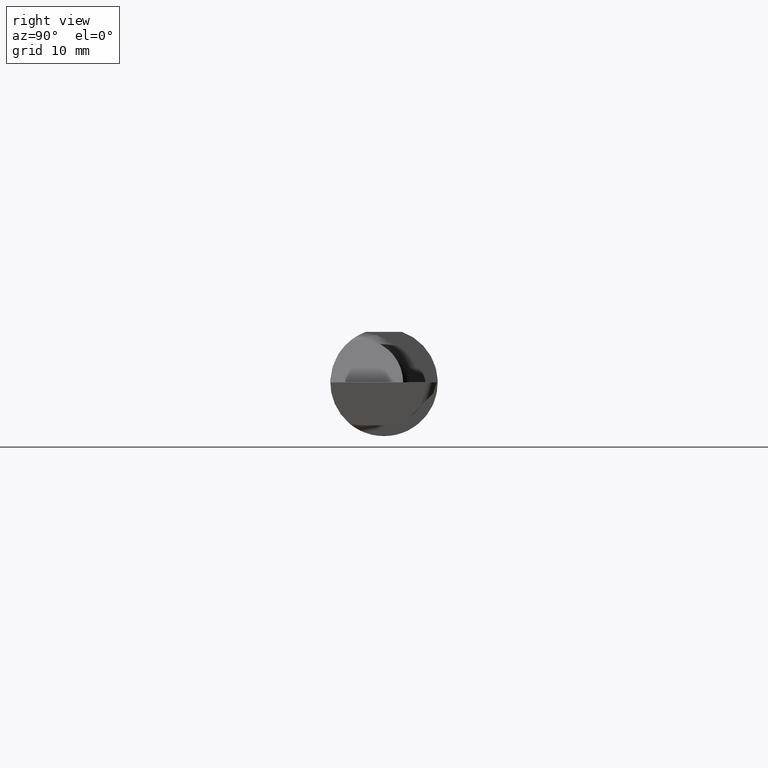
[diagram: clean part render]
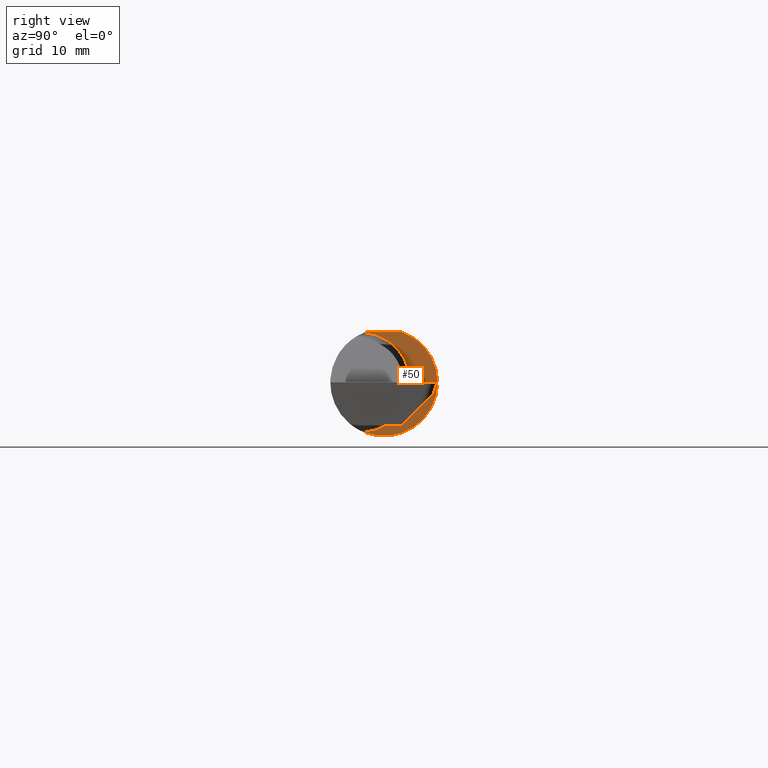
[diagram: same view with one face highlighted and labeled with its STEP entity id]
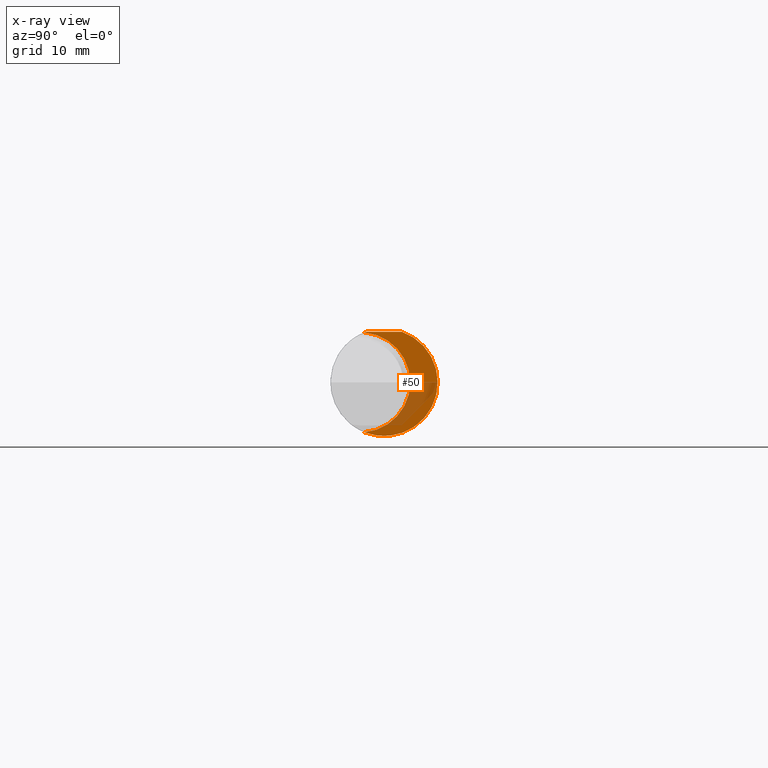
[diagram: x-ray of the same camera — body ghosted, the highlighted face saturated]
A machine part, right view. The second image highlights one B-rep face of the part: STEP entity #50.
The next image is the same camera in x-ray: the body ghosted, the highlighted face saturated — about 28% of this face is hidden behind the body in this view.
In plain terms, the highlighted planar face has unit normal (1, 0, 0).
Its self-contained STEP definition (entity closure, byte-faithful):
#1 = CARTESIAN_POINT ( 'NONE',  ( 1.450000000000000178, -0.06851976604679066440, 0.1743704796142198643 ) ) ;
#19 = EDGE_CURVE ( 'NONE', #343, #255, #606, .T. ) ;
#20 = DIRECTION ( 'NONE',  ( 0.000000000000000000, 1.000000000000000000, 0.000000000000000000 ) ) ;
#40 = DIRECTION ( 'NONE',  ( 0.000000000000000000, 1.000000000000000000, 0.000000000000000000 ) ) ;
#42 = ORIENTED_EDGE ( 'NONE', *, *, #19, .F. ) ;
#50 = ADVANCED_FACE ( 'NONE', ( #224 ), #218, .T. ) ;
#79 = EDGE_CURVE ( 'NONE', #343, #387, #85, .T. ) ;
#85 = CIRCLE ( 'NONE', #166, 0.1873499999999999888 ) ;
#113 = DIRECTION ( 'NONE',  ( -5.153652266948881677E-17, 1.000000000000000000, 0.000000000000000000 ) ) ;
#166 = AXIS2_PLACEMENT_3D ( 'NONE', #576, #686, #20 ) ;
#167 = ORIENTED_EDGE ( 'NONE', *, *, #169, .T. ) ;
#169 = EDGE_CURVE ( 'NONE', #387, #352, #681, .T. ) ;
#186 = DIRECTION ( 'NONE',  ( -1.000000000000000000, -5.153652266948881677E-17, -0.000000000000000000 ) ) ;
#207 = CARTESIAN_POINT ( 'NONE',  ( 1.450000000000000178, -0.06851976604679066440, -0.1743704796142198643 ) ) ;
#213 = CARTESIAN_POINT ( 'NONE',  ( 1.450000000000000178, 0.000000000000000000, 0.000000000000000000 ) ) ;
#218 = PLANE ( 'NONE',  #449 ) ;
#224 = FACE_OUTER_BOUND ( 'NONE', #702, .T. ) ;
#230 = ORIENTED_EDGE ( 'NONE', *, *, #340, .T. ) ;
#255 = VERTEX_POINT ( 'NONE', #362 ) ;
#260 = AXIS2_PLACEMENT_3D ( 'NONE', #213, #305, #40 ) ;
#266 = CARTESIAN_POINT ( 'NONE',  ( 1.450000000000000178, 0.1873499999999998500, 0.000000000000000000 ) ) ;
#298 = CIRCLE ( 'NONE', #260, 0.1873499999999999888 ) ;
#305 = DIRECTION ( 'NONE',  ( 1.000000000000000000, 5.153652266948881677E-17, 0.000000000000000000 ) ) ;
#328 = CARTESIAN_POINT ( 'NONE',  ( 1.450000000000000178, 0.1873499999999997667, 0.1763499999999999235 ) ) ;
#340 = EDGE_CURVE ( 'NONE', #352, #255, #298, .T. ) ;
#343 = VERTEX_POINT ( 'NONE', #694 ) ;
#352 = VERTEX_POINT ( 'NONE', #207 ) ;
#362 = CARTESIAN_POINT ( 'NONE',  ( 1.450000000000000178, 0.06325108694718235836, 0.1763499999999999235 ) ) ;
#387 = VERTEX_POINT ( 'NONE', #1 ) ;
#428 = AXIS2_PLACEMENT_3D ( 'NONE', #617, #186, #460 ) ;
#438 = DIRECTION ( 'NONE',  ( -5.153652266948881677E-17, 1.000000000000000000, 0.000000000000000000 ) ) ;
#441 = DIRECTION ( 'NONE',  ( 1.000000000000000000, 5.153652266948881677E-17, 0.000000000000000000 ) ) ;
#449 = AXIS2_PLACEMENT_3D ( 'NONE', #266, #441, #438 ) ;
#458 = ORIENTED_EDGE ( 'NONE', *, *, #79, .T. ) ;
#460 = DIRECTION ( 'NONE',  ( 0.000000000000000000, -1.000000000000000000, 0.000000000000000000 ) ) ;
#520 = VECTOR ( 'NONE', #113, 39.37007874015748143 ) ;
#576 = CARTESIAN_POINT ( 'NONE',  ( 1.450000000000000178, 0.000000000000000000, 0.000000000000000000 ) ) ;
#606 = LINE ( 'NONE', #328, #520 ) ;
#617 = CARTESIAN_POINT ( 'NONE',  ( 1.450000000000000178, -0.08335000000000004905, 0.000000000000000000 ) ) ;
#681 = CIRCLE ( 'NONE', #428, 0.1749999999999999889 ) ;
#686 = DIRECTION ( 'NONE',  ( 1.000000000000000000, 5.153652266948881677E-17, 0.000000000000000000 ) ) ;
#694 = CARTESIAN_POINT ( 'NONE',  ( 1.450000000000000178, -0.06325108694718287183, 0.1763499999999999235 ) ) ;
#702 = EDGE_LOOP ( 'NONE', ( #230, #42, #458, #167 ) ) ;